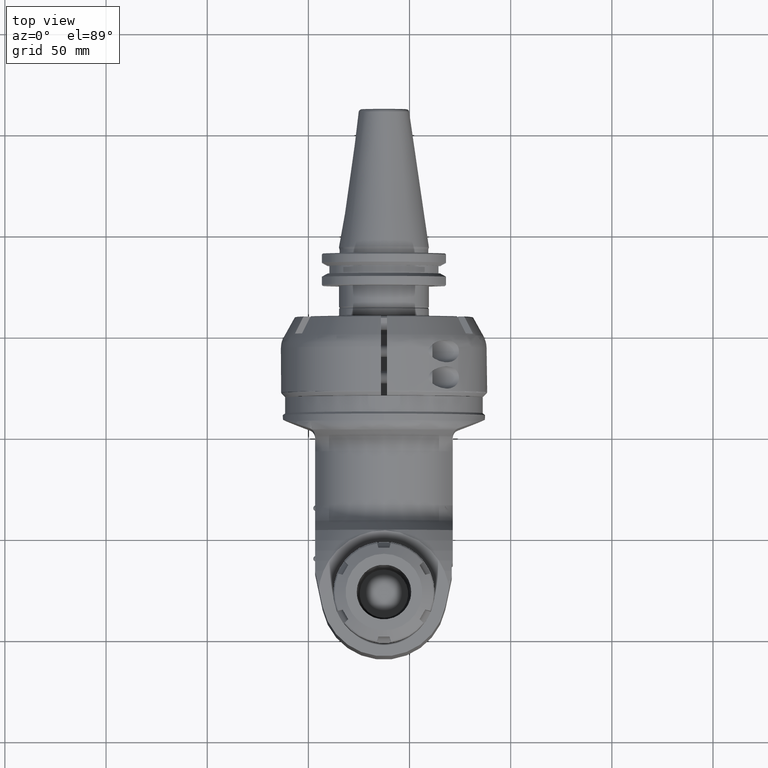
[diagram: clean part render]
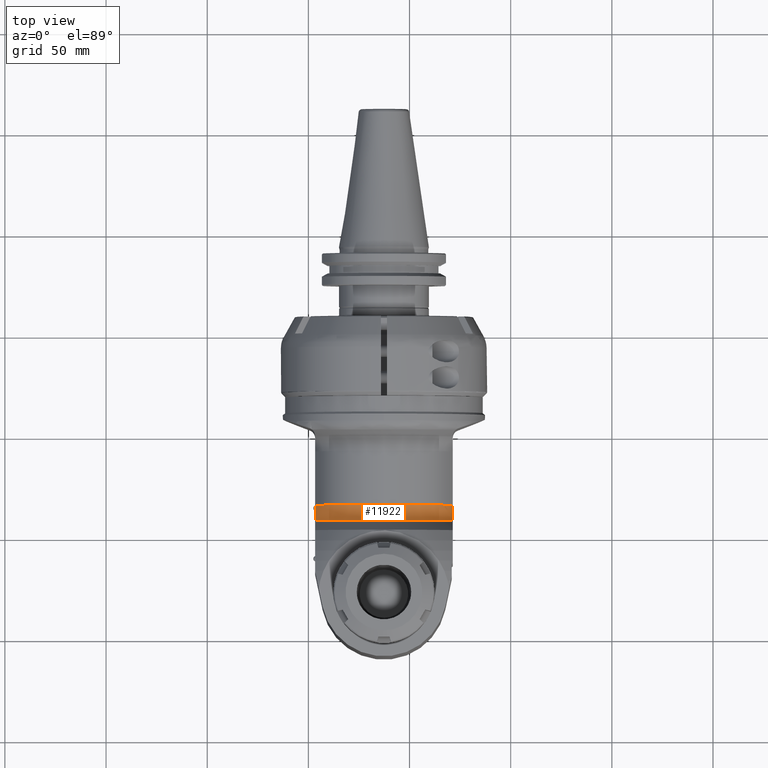
[diagram: same view with one face highlighted and labeled with its STEP entity id]
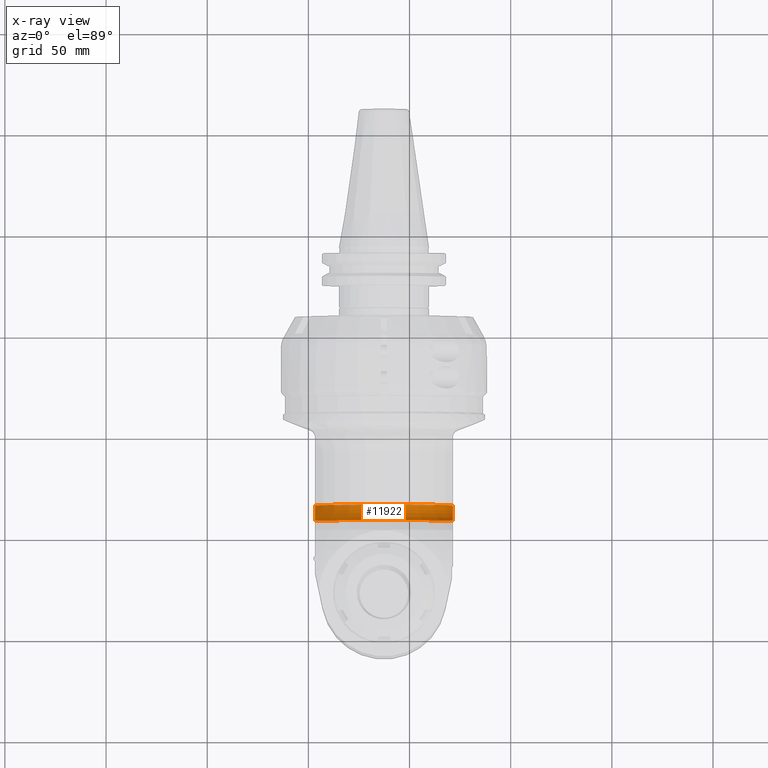
[diagram: x-ray of the same camera — body ghosted, the highlighted face saturated]
A machine part, top view. The second image highlights one B-rep face of the part: STEP entity #11922.
The next image is the same camera in x-ray: the body ghosted, the highlighted face saturated — about 0% of this face is hidden behind the body in this view.
In plain terms, the highlighted toroidal blend (fillet) surface has major radius 45 mm and minor (blend) radius 9 mm.
Its self-contained STEP definition (entity closure, byte-faithful):
#331=B_SPLINE_CURVE_WITH_KNOTS('',3,(#17360,#17361,#17362,#17363,#17364,
#17365,#17366,#17367,#17368,#17369),.UNSPECIFIED.,.F.,.F.,(4,2,2,2,4),(2.32747365321976,
2.8780740864616,3.34957183106961,3.49005950207602,3.59989156653282),
 .UNSPECIFIED.);
#341=B_SPLINE_CURVE_WITH_KNOTS('',3,(#17596,#17597,#17598,#17599,#17600,
#17601,#17602,#17603,#17604,#17605),.UNSPECIFIED.,.F.,.F.,(4,2,2,2,4),(3.59989156653281,
3.70972363098961,3.85021130199602,4.32170904660402,4.87230947984852),
 .UNSPECIFIED.);
#577=TOROIDAL_SURFACE('',#12699,45.,9.);
#2760=FACE_OUTER_BOUND('',#3434,.T.);
#3434=EDGE_LOOP('',(#8316,#8317,#8318,#8319));
#4107=CIRCLE('',#12576,36.);
#4166=CIRCLE('',#12698,40.5);
#4703=VERTEX_POINT('',#17299);
#4704=VERTEX_POINT('',#17301);
#4714=VERTEX_POINT('',#17356);
#4769=VERTEX_POINT('',#17595);
#5997=EDGE_CURVE('',#4704,#4703,#4107,.T.);
#6009=EDGE_CURVE('',#4714,#4703,#331,.T.);
#6075=EDGE_CURVE('',#4704,#4769,#341,.T.);
#6228=EDGE_CURVE('',#4714,#4769,#4166,.T.);
#8316=ORIENTED_EDGE('',*,*,#6228,.T.);
#8317=ORIENTED_EDGE('',*,*,#6075,.F.);
#8318=ORIENTED_EDGE('',*,*,#5997,.T.);
#8319=ORIENTED_EDGE('',*,*,#6009,.F.);
#11922=ADVANCED_FACE('',(#2760),#577,.F.);
#12576=AXIS2_PLACEMENT_3D('',#17302,#13883,#13884);
#12698=AXIS2_PLACEMENT_3D('',#22421,#14159,#14160);
#12699=AXIS2_PLACEMENT_3D('',#22422,#14161,#14162);
#13883=DIRECTION('center_axis',(1.,0.,0.));
#13884=DIRECTION('ref_axis',(0.,-1.,0.));
#14159=DIRECTION('center_axis',(-1.,0.,0.));
#14160=DIRECTION('ref_axis',(0.,-1.,0.));
#14161=DIRECTION('center_axis',(1.,0.,0.));
#14162=DIRECTION('ref_axis',(0.,0.,-1.));
#17299=CARTESIAN_POINT('',(233.8669445005,-11.8321595662,-34.));
#17301=CARTESIAN_POINT('',(233.8669445005,-11.8321595662,34.));
#17302=CARTESIAN_POINT('Origin',(233.8669445005,0.,0.));
#17356=CARTESIAN_POINT('',(241.6611731346,-22.00568108462,-34.));
#17360=CARTESIAN_POINT('Ctrl Pts',(241.661173134551,-22.0056810846355,-34.));
#17361=CARTESIAN_POINT('Ctrl Pts',(241.066668194054,-20.110562878016,-34.));
#17362=CARTESIAN_POINT('Ctrl Pts',(240.279862271904,-18.2918418451213,-34.));
#17363=CARTESIAN_POINT('Ctrl Pts',(238.591879803817,-15.3323954779161,-34.));
#17364=CARTESIAN_POINT('Ctrl Pts',(237.519070508123,-13.7812532581952,-34.));
#17365=CARTESIAN_POINT('Ctrl Pts',(235.920003028459,-12.5146101157905,-34.));
#17366=CARTESIAN_POINT('Ctrl Pts',(235.443066222336,-12.2174235510846,-34.));
#17367=CARTESIAN_POINT('Ctrl Pts',(234.663546023659,-11.9198161783188,-34.));
#17368=CARTESIAN_POINT('Ctrl Pts',(234.233051382023,-11.8321595661992,-34.));
#17369=CARTESIAN_POINT('Ctrl Pts',(233.8669445005,-11.8321595661992,-34.));
#17595=CARTESIAN_POINT('',(241.6611731346,-22.00568108465,34.));
#17596=CARTESIAN_POINT('Ctrl Pts',(233.8669445005,-11.8321595661992,34.));
#17597=CARTESIAN_POINT('Ctrl Pts',(234.233051382023,-11.8321595661992,34.));
#17598=CARTESIAN_POINT('Ctrl Pts',(234.663546023659,-11.9198161783188,34.));
#17599=CARTESIAN_POINT('Ctrl Pts',(235.443066222336,-12.2174235510846,34.));
#17600=CARTESIAN_POINT('Ctrl Pts',(235.920003028459,-12.5146101157905,34.));
#17601=CARTESIAN_POINT('Ctrl Pts',(237.519070508123,-13.7812532581952,34.));
#17602=CARTESIAN_POINT('Ctrl Pts',(238.591879803817,-15.3323954779161,34.));
#17603=CARTESIAN_POINT('Ctrl Pts',(240.279862271908,-18.2918418451289,34.));
#17604=CARTESIAN_POINT('Ctrl Pts',(241.066668194062,-20.1105628780334,34.));
#17605=CARTESIAN_POINT('Ctrl Pts',(241.661173134559,-22.0056810846628,34.));
#22421=CARTESIAN_POINT('Origin',(241.6611731346,0.,0.));
#22422=CARTESIAN_POINT('Origin',(233.8669445005,0.,0.));